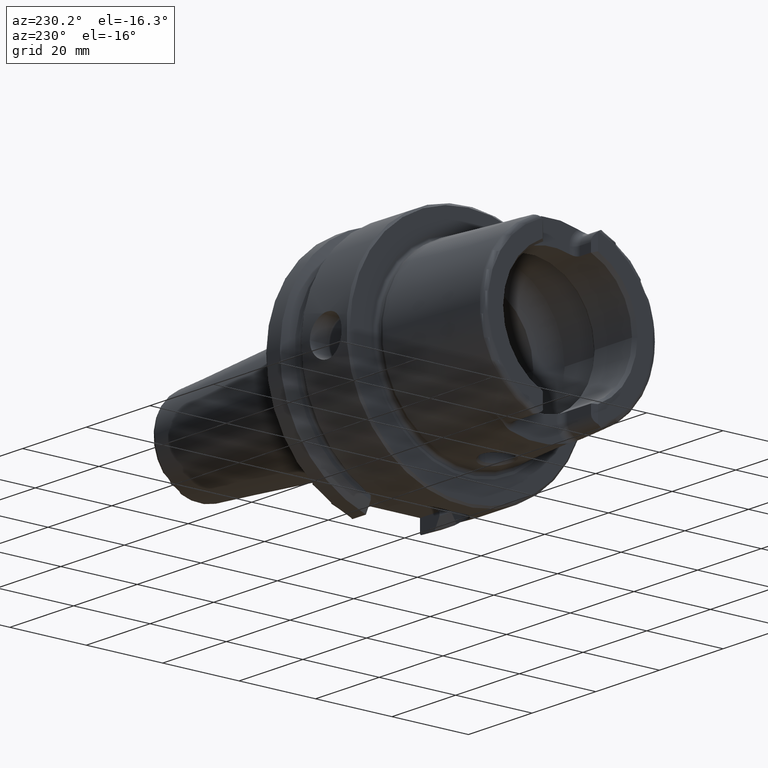
[diagram: clean part render]
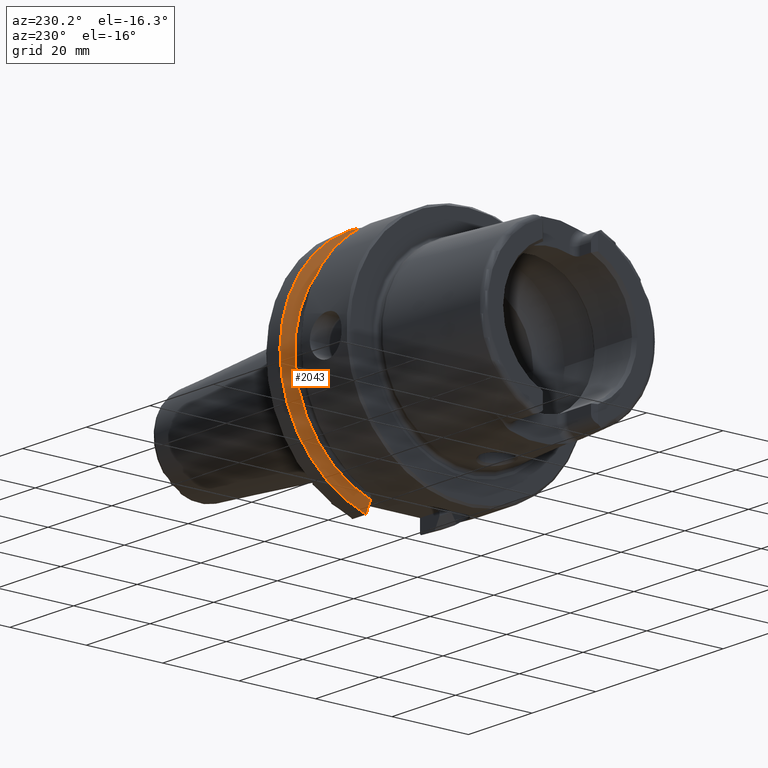
[diagram: same view with one face highlighted and labeled with its STEP entity id]
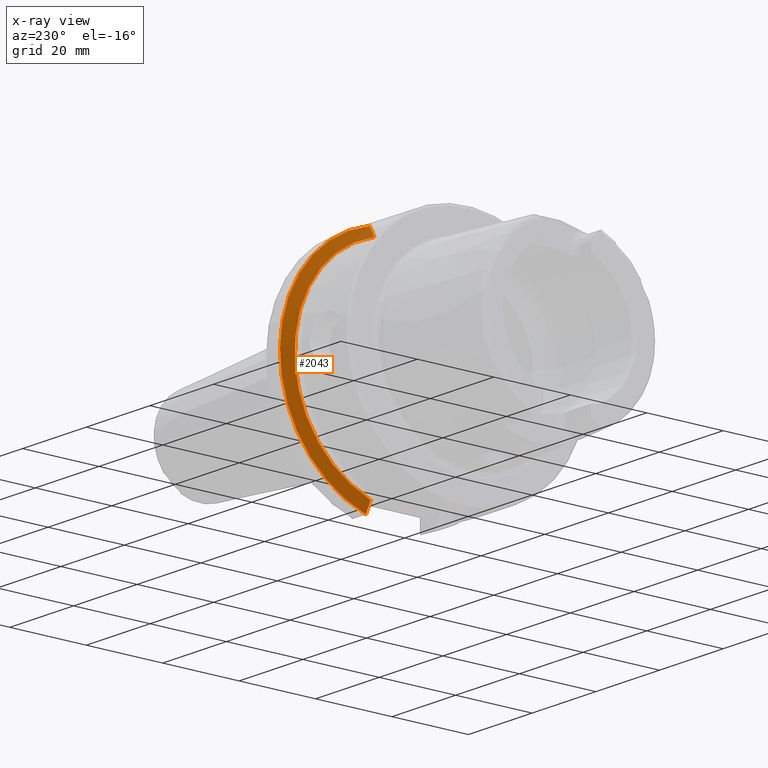
[diagram: x-ray of the same camera — body ghosted, the highlighted face saturated]
A machine part, auxiliary view. The second image highlights one B-rep face of the part: STEP entity #2043.
The next image is the same camera in x-ray: the body ghosted, the highlighted face saturated — about 3% of this face is hidden behind the body in this view.
In plain terms, the highlighted conical surface has half-angle 60 deg.
Its self-contained STEP definition (entity closure, byte-faithful):
#24=(
BOUNDED_CURVE()
B_SPLINE_CURVE(2,(#3999,#4000,#4001),.UNSPECIFIED.,.F.,.F.)
B_SPLINE_CURVE_WITH_KNOTS((3,3),(0.,0.311314369989023),.UNSPECIFIED.)
CURVE()
GEOMETRIC_REPRESENTATION_ITEM()
RATIONAL_B_SPLINE_CURVE((1.,1.00102053193238,1.))
REPRESENTATION_ITEM('')
);
#27=(
BOUNDED_CURVE()
B_SPLINE_CURVE(2,(#4196,#4197,#4198),.UNSPECIFIED.,.F.,.F.)
B_SPLINE_CURVE_WITH_KNOTS((3,3),(0.,0.308905667770379),.UNSPECIFIED.)
CURVE()
GEOMETRIC_REPRESENTATION_ITEM()
RATIONAL_B_SPLINE_CURVE((1.,1.00099999355179,1.))
REPRESENTATION_ITEM('')
);
#280=FACE_OUTER_BOUND('',#407,.T.);
#407=EDGE_LOOP('',(#1690,#1691,#1692,#1693));
#752=CIRCLE('',#2262,31.5);
#756=CIRCLE('',#2270,28.8975952641916);
#943=VERTEX_POINT('',#3996);
#944=VERTEX_POINT('',#3998);
#970=VERTEX_POINT('',#4180);
#973=VERTEX_POINT('',#4194);
#1195=EDGE_CURVE('',#944,#943,#24,.T.);
#1235=EDGE_CURVE('',#944,#970,#752,.T.);
#1242=EDGE_CURVE('',#943,#973,#756,.T.);
#1243=EDGE_CURVE('',#973,#970,#27,.T.);
#1690=ORIENTED_EDGE('',*,*,#1195,.T.);
#1691=ORIENTED_EDGE('',*,*,#1242,.T.);
#1692=ORIENTED_EDGE('',*,*,#1243,.T.);
#1693=ORIENTED_EDGE('',*,*,#1235,.F.);
#1967=CONICAL_SURFACE('',#2269,30.1987976320958,1.0471975511966);
#2043=ADVANCED_FACE('',(#280),#1967,.T.);
#2262=AXIS2_PLACEMENT_3D('',#4181,#2741,#2742);
#2269=AXIS2_PLACEMENT_3D('',#4193,#2758,#2759);
#2270=AXIS2_PLACEMENT_3D('',#4195,#2760,#2761);
#2741=DIRECTION('center_axis',(1.,0.,0.));
#2742=DIRECTION('ref_axis',(0.,0.,-1.));
#2758=DIRECTION('center_axis',(1.,0.,0.));
#2759=DIRECTION('ref_axis',(0.,1.,0.));
#2760=DIRECTION('center_axis',(1.,0.,0.));
#2761=DIRECTION('ref_axis',(0.,0.,-1.));
#3996=CARTESIAN_POINT('',(19.875,9.,-27.4603534582684));
#3998=CARTESIAN_POINT('',(21.3774990747593,9.,-30.1869176962472));
#3999=CARTESIAN_POINT('Ctrl Pts',(21.3774990747593,9.,-30.1869176962472));
#4000=CARTESIAN_POINT('Ctrl Pts',(20.5907174110267,9.,-28.7648946319029));
#4001=CARTESIAN_POINT('Ctrl Pts',(19.875,9.,-27.4603534582684));
#4180=CARTESIAN_POINT('',(21.3774990747593,8.,30.4671954731642));
#4181=CARTESIAN_POINT('Origin',(21.3774990747593,0.,0.));
#4193=CARTESIAN_POINT('Origin',(20.6262495373797,0.,0.));
#4194=CARTESIAN_POINT('',(19.875,8.,27.7681654426977));
#4195=CARTESIAN_POINT('Origin',(19.875,0.,0.));
#4196=CARTESIAN_POINT('Ctrl Pts',(19.875,8.,27.7681654426977));
#4197=CARTESIAN_POINT('Ctrl Pts',(20.5914314297926,8.,29.0595327079868));
#4198=CARTESIAN_POINT('Ctrl Pts',(21.3774990747593,8.,30.4671954731642));